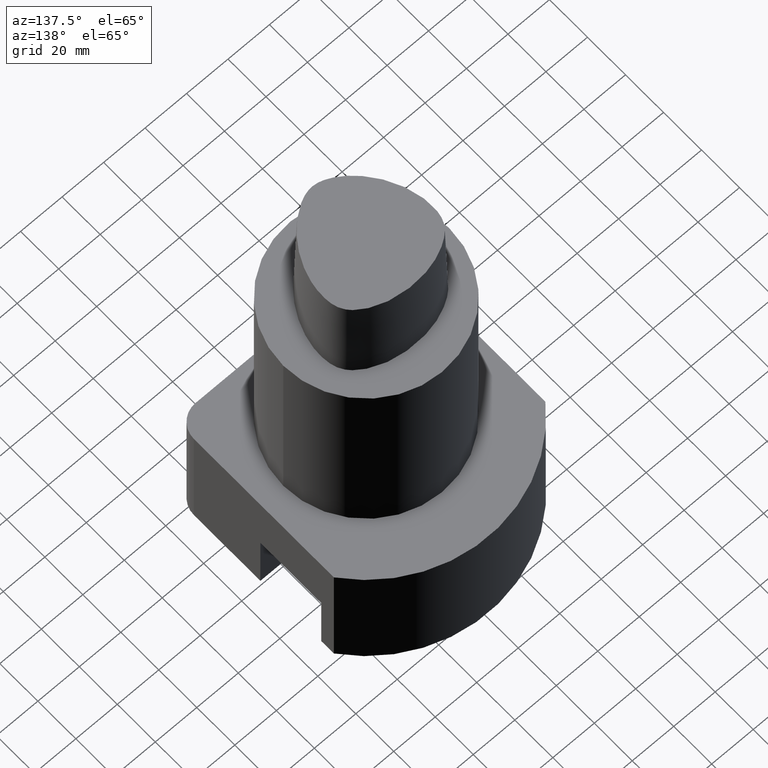
[diagram: clean part render]
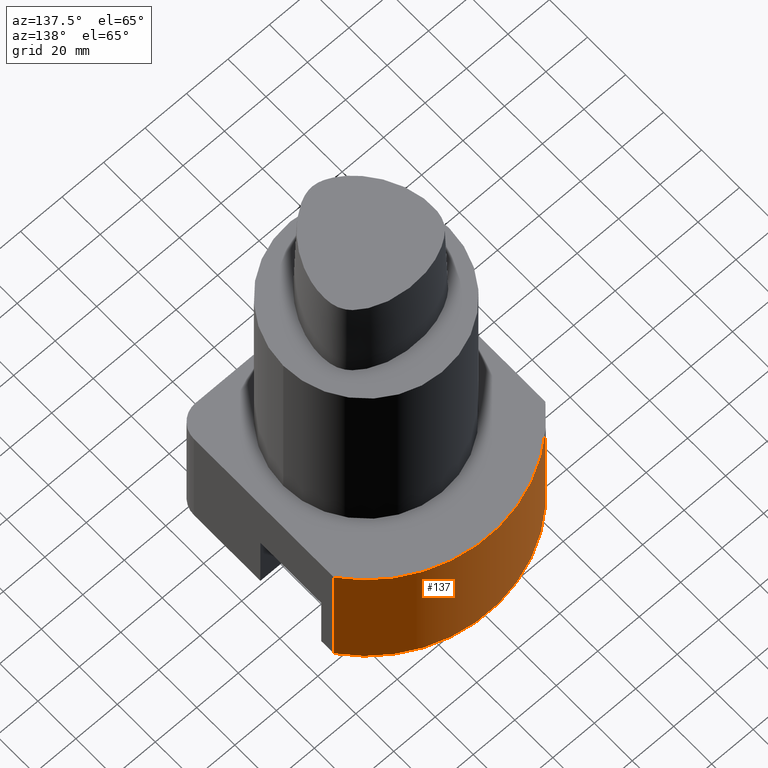
[diagram: same view with one face highlighted and labeled with its STEP entity id]
A machine part, auxiliary view. The second image highlights one B-rep face of the part: STEP entity #137.
In plain terms, the highlighted cylindrical surface (partial cylindrical patch) has radius 64 mm, axis along (-0, 0, 1).
Its self-contained STEP definition (entity closure, byte-faithful):
#82=EDGE_CURVE('240[2]',#230,#231,#232,.T.);
#117=EDGE_CURVE('240[2]',#272,#282,#283,.T.);
#137=ADVANCED_FACE('240[2]',(#310),#311,.T.);
#139=EDGE_CURVE('240[2]',#282,#231,#313,.T.);
#189=EDGE_CURVE('240[2]',#272,#230,#377,.T.);
#230=VERTEX_POINT('',#415);
#231=VERTEX_POINT('',#416);
#232=CIRCLE('',#417,64.0);
#272=VERTEX_POINT('',#522);
#282=VERTEX_POINT('',#536);
#283=CIRCLE('',#537,64.0);
#310=FACE_OUTER_BOUND('',#579,.T.);
#311=CYLINDRICAL_SURFACE('',#580,64.0);
#313=LINE('',#583,#584);
#377=LINE('',#773,#774);
#415=CARTESIAN_POINT('',(-50.9999999078492,38.6652299799106,-101.0));
#416=CARTESIAN_POINT('',(50.9999999267513,38.6652299549786,-101.0));
#417=AXIS2_PLACEMENT_3D('',#1196,#1197,#1198);
#522=CARTESIAN_POINT('',(-50.9999999078492,38.6652299799106,-165.0));
#536=CARTESIAN_POINT('',(50.9999999267513,38.6652299549786,-165.0));
#537=AXIS2_PLACEMENT_3D('',#1254,#1255,#1256);
#579=EDGE_LOOP('',(#1275,#1276,#1277,#1278));
#580=AXIS2_PLACEMENT_3D('',#1279,#1280,#1281);
#583=CARTESIAN_POINT('',(50.9999999267513,38.6652299549786,-165.0));
#584=VECTOR('',#1282,1.0);
#773=CARTESIAN_POINT('',(-50.9999999078492,38.6652299799106,-165.0));
#774=VECTOR('',#1363,1.0);
#1196=CARTESIAN_POINT('',(3.21487886764629E-014,-6.18446633569414E-015,-101.0));
#1197=DIRECTION('',(-1.22464679914735E-016,1.22464679914735E-016,-1.0));
#1198=DIRECTION('',(3.06161699786838E-016,1.0,1.22464679914735E-016));
#1254=CARTESIAN_POINT('',(3.99865281910059E-014,-1.01033360929657E-014,-165.0));
#1255=DIRECTION('',(-1.22464679914735E-016,1.22464679914735E-016,-1.0));
#1256=DIRECTION('',(3.06161699786838E-016,1.0,1.22464679914735E-016));
#1275=ORIENTED_EDGE('',*,*,#189,.T.);
#1276=ORIENTED_EDGE('',*,*,#82,.T.);
#1277=ORIENTED_EDGE('',*,*,#139,.F.);
#1278=ORIENTED_EDGE('',*,*,#117,.F.);
#1279=CARTESIAN_POINT('',(3.99865281910059E-014,-1.01033360929657E-014,-165.0));
#1280=DIRECTION('',(-1.22464679914735E-016,6.12323399573677E-017,1.0));
#1281=DIRECTION('',(3.06161699786838E-016,1.0,-6.12323399573677E-017));
#1282=DIRECTION('',(-1.22464679914735E-016,6.12323399573677E-017,1.0));
#1363=DIRECTION('',(-1.22464679914735E-016,6.12323399573677E-017,1.0));